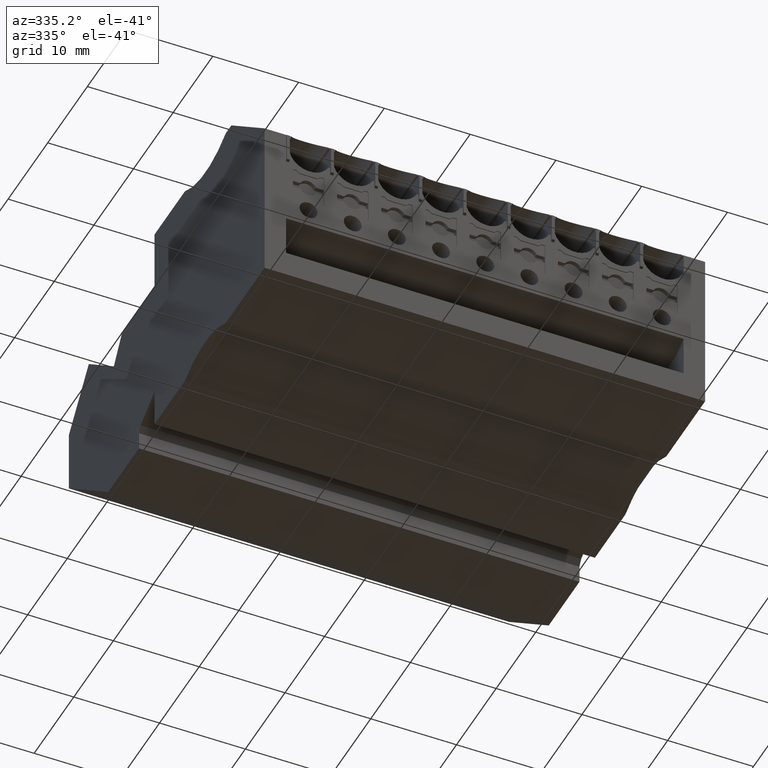
[diagram: clean part render]
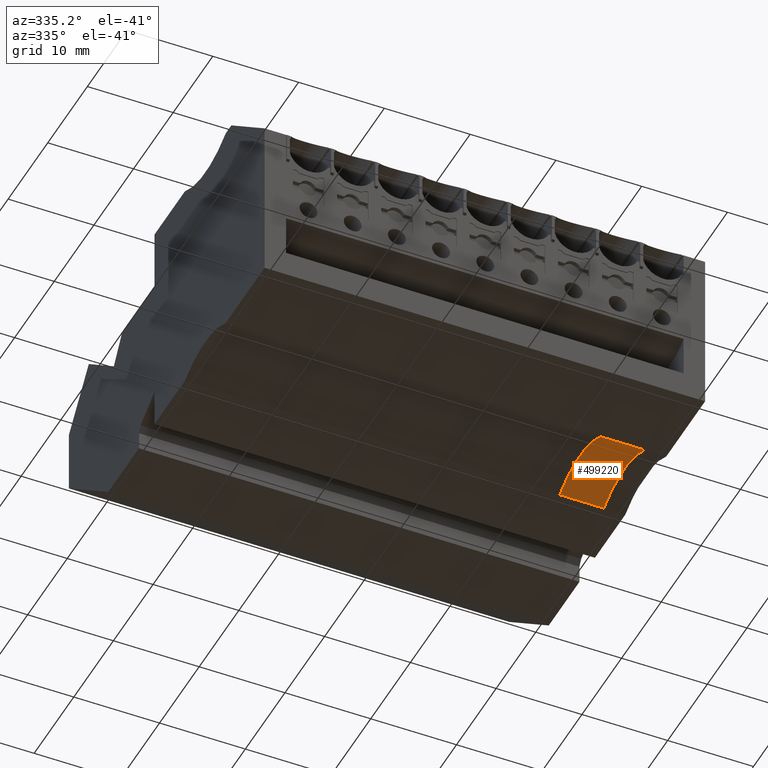
[diagram: same view with one face highlighted and labeled with its STEP entity id]
A machine part, auxiliary view. The second image highlights one B-rep face of the part: STEP entity #499220.
In plain terms, the highlighted cylindrical surface (partial cylindrical patch) has radius 10 mm, axis along (-1, -0, 0).
Its self-contained STEP definition (entity closure, byte-faithful):
#12220=CARTESIAN_POINT('',(430.260883772267,670.934347639395,
93.8699999926897));
#12230=DIRECTION('',(1.66699210889915E-10,4.90742846146349E-10,1.));
#12240=VECTOR('',#12230,1.);
#12250=LINE('',#12220,#12240);
#66680=CARTESIAN_POINT('',(440.590572493105,670.934347727425,
284.419999991964));
#66690=DIRECTION('',(-1.66699262872186E-10,-4.90742678260922E-10,-1.));
#66700=VECTOR('',#66690,1.);
#66710=LINE('',#66680,#66700);
#306520=CARTESIAN_POINT('',(440.590572464775,670.934347644024,
114.469999989576));
#306530=VERTEX_POINT('',#306520);
#306540=CARTESIAN_POINT('',(440.590572463916,670.934347641496,
109.319999999033));
#306550=VERTEX_POINT('',#306540);
#306560=EDGE_CURVE('',#306530,#306550,#66710,.T.);
#368790=CARTESIAN_POINT('',(435.425728112936,662.371381971997,
284.419999997027));
#368800=DIRECTION('',(-1.66699262872186E-10,-4.90742678260922E-10,-1.));
#368810=DIRECTION('',(1.,-1.20456367103123E-9,-1.66698994956591E-10));
#368820=AXIS2_PLACEMENT_3D('',#368790,#368800,#368810);
#368830=CYLINDRICAL_SURFACE('',#368820,10.);
#368840=CARTESIAN_POINT('',(430.26088376042,670.934347675781,
109.320000000755));
#368850=VERTEX_POINT('',#368840);
#368880=CARTESIAN_POINT('',(435.425728083747,662.371381886068,
109.320000004097));
#368890=DIRECTION('',(1.66699262872186E-10,4.90742678260922E-10,1.));
#368900=DIRECTION('',(1.,-1.20456367103123E-9,-1.66698994956591E-10));
#368910=AXIS2_PLACEMENT_3D('',#368880,#368890,#368900);
#368920=CIRCLE('',#368910,10.);
#368930=EDGE_CURVE('',#306550,#368850,#368920,.T.);
#499070=CARTESIAN_POINT('',(430.260883742456,670.934347654869,
114.469999991298));
#499080=VERTEX_POINT('',#499070);
#499090=EDGE_CURVE('',#368850,#499080,#12250,.T.);
#499100=ORIENTED_EDGE('',*,*,#499090,.F.);
#499110=CARTESIAN_POINT('',(435.425728084606,662.371381888596,
114.46999999464));
#499120=DIRECTION('',(1.66699262872186E-10,4.90742678260922E-10,1.));
#499130=DIRECTION('',(1.,-1.20456372654239E-9,-1.66699262281055E-10));
#499140=AXIS2_PLACEMENT_3D('',#499110,#499120,#499130);
#499150=CIRCLE('',#499140,10.);
#499160=EDGE_CURVE('',#306530,#499080,#499150,.T.);
#499170=ORIENTED_EDGE('',*,*,#499160,.T.);
#499180=ORIENTED_EDGE('',*,*,#306560,.F.);
#499190=ORIENTED_EDGE('',*,*,#368930,.F.);
#499200=EDGE_LOOP('',(#499190,#499180,#499170,#499100));
#499210=FACE_OUTER_BOUND('',#499200,.T.);
#499220=ADVANCED_FACE('',(#499210),#368830,.F.);